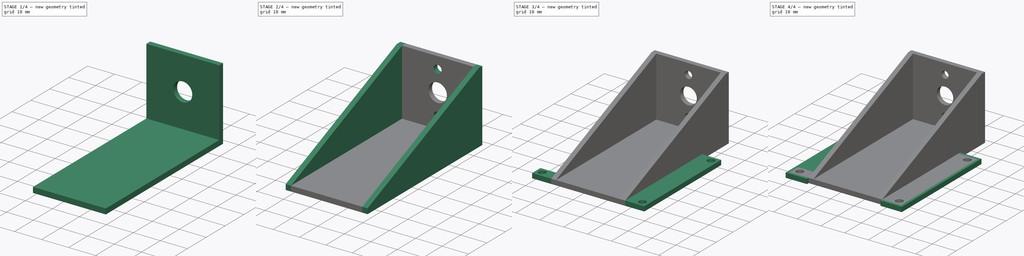
[diagram: build sequence overview — one tinted view per stage of 4, left to right]
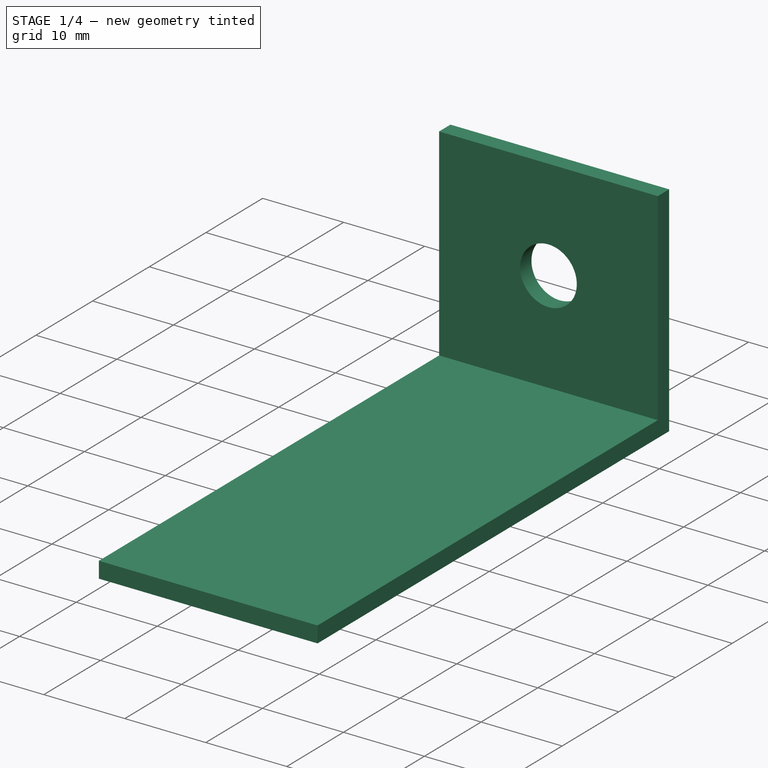
[diagram: stage 1 of 4 — iso view after this stage's code; geometry added in this stage tinted green]
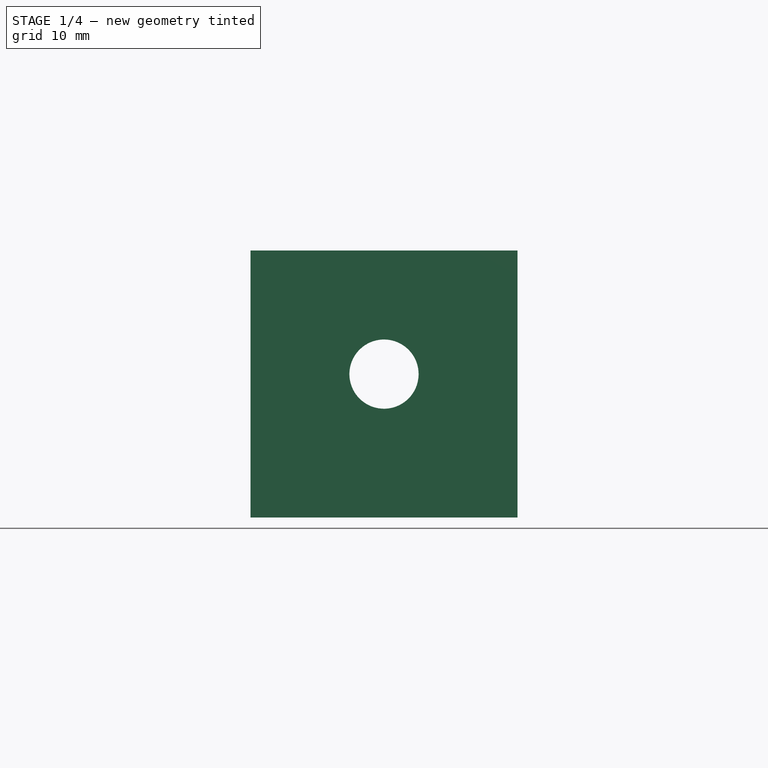
[diagram: stage 1 of 4 — front view after this stage's code; geometry added in this stage tinted green]
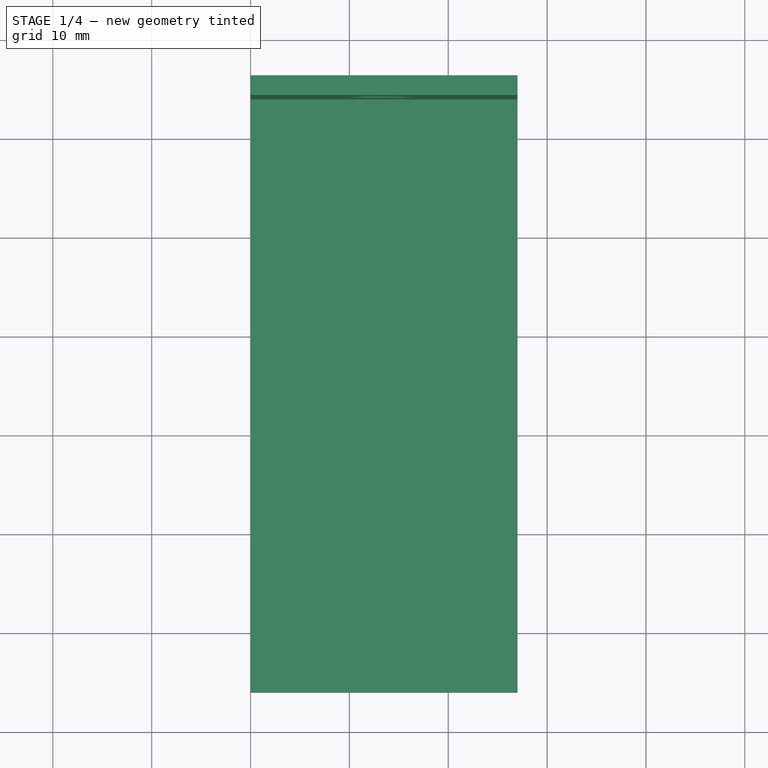
[diagram: stage 1 of 4 — top view after this stage's code; geometry added in this stage tinted green]
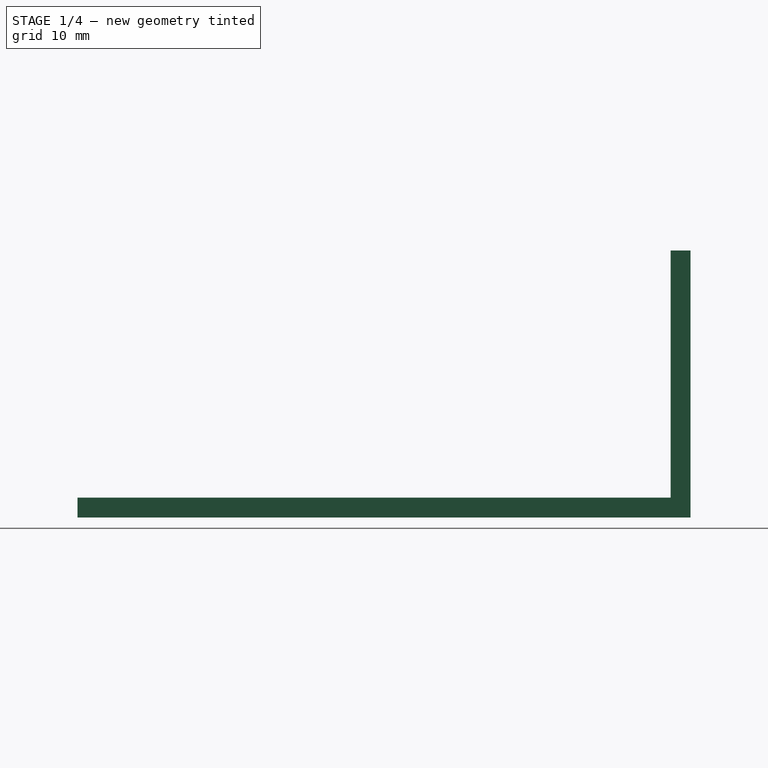
[diagram: stage 1 of 4 — right view after this stage's code; geometry added in this stage tinted green]
FCSTD DOCUMENT  (FreeCAD 0.15R4671 (Git))
Label: Motor-holder1
License: All rights reserved
LicenseURL: http://en.wikipedia.org/wiki/All_rights_reserved
objects: Sketcher::SketchObject×9, PartDesign::Pad×6, PartDesign::Pocket×3, PartDesign::LinearPattern×1
note: 28 computed .brp shape members not serialized (recipe doc carries the construction recipe); baked Part::Feature solids carry a one-line shape summary decoded from their .brp

FEATURE [Sketcher::SketchObject] Sketch
  Placement = pos=(0,0,0) rot=(0.57735,0.57735,0.57735;2.0944rad)
  sketch-geometry (7):
    g0: LineSegment StartX=-6 StartY=-4 StartZ=0 EndX=54 EndY=-4 EndZ=0
    g1: LineSegment StartX=54 StartY=-6 StartZ=0 EndX=-6 EndY=-6 EndZ=0
    g2: LineSegment StartX=-6 StartY=-6 StartZ=0 EndX=-6 EndY=-4 EndZ=0
    g3: LineSegment StartX=54 StartY=-6 StartZ=0 EndX=56 EndY=-6 EndZ=0
    g4: LineSegment StartX=56 StartY=-6 StartZ=0 EndX=56 EndY=21 EndZ=0
    g5: LineSegment StartX=56 StartY=21 StartZ=0 EndX=54 EndY=21 EndZ=0
    g6: LineSegment StartX=54 StartY=-4 StartZ=0 EndX=54 EndY=21 EndZ=0
  constraints (21):
    c: Coincident(g1,g2)
    c: Coincident(g2,g0)
    c: Horizontal(g0)
    c: Horizontal(g1)
    c: Vertical(g2)
    c: DistanceX(g0,g0) = 60
    c: DistanceY(g1,g0) = 2
    c: Coincident(g3,g4)
    c: Coincident(g4,g5)
    c: Horizontal(g3)
    c: Horizontal(g5)
    c: Vertical(g4)
    c: DistanceX(g3,g1) = -2
    c: DistanceY(g4,g3) = -27
    c: Coincident(g5,g6)
    c: Coincident(g0,g6)
    c: Coincident(g3,g1)
    c: DistanceX(g1,g1) = -60
    c: DistanceX(g4,g5) = -2
    c: DistanceX(g-1,g0) = -6
    c: DistanceY(g-1,g0) = -4
FEATURE [PartDesign::Pad] Pad
  Length = 27
  Length2 = 100
  Placement = pos=(0,0,0) rot=(0.57735,0.57735,0.57735;2.0944rad)
  Sketch = -> Sketch
  Type = 0
FEATURE [Sketcher::SketchObject] Sketch001
  Placement = pos=(0,54,0) rot=(0.57735,0.57735,-0.57735;2.0944rad)
  Support = -> Pad [Face4]
  sketch-geometry (2):
    g0: Circle CenterX=-8.5 CenterY=13.5 CenterZ=0 NormalX=0 NormalY=0 NormalZ=1 Radius=3.5
    g1: GeomPoint [constr] X=-5 Y=13.5 Z=0
  constraints (5):
    c: PointOnObject(g1,g0)
    c: DistanceY(g1,g0) = 0
    c: DistanceY(g-1,g0) = 13.5
    c: DistanceX(g-1,g0) = -8.5
    c: DistanceX(g0,g1) = 3.5
FEATURE [PartDesign::Pocket] Pocket
  Length = 5
  Placement = pos=(0,0,0) rot=(0.57735,0.57735,0.57735;2.0944rad)
  Sketch = -> Sketch001
  Type = 0
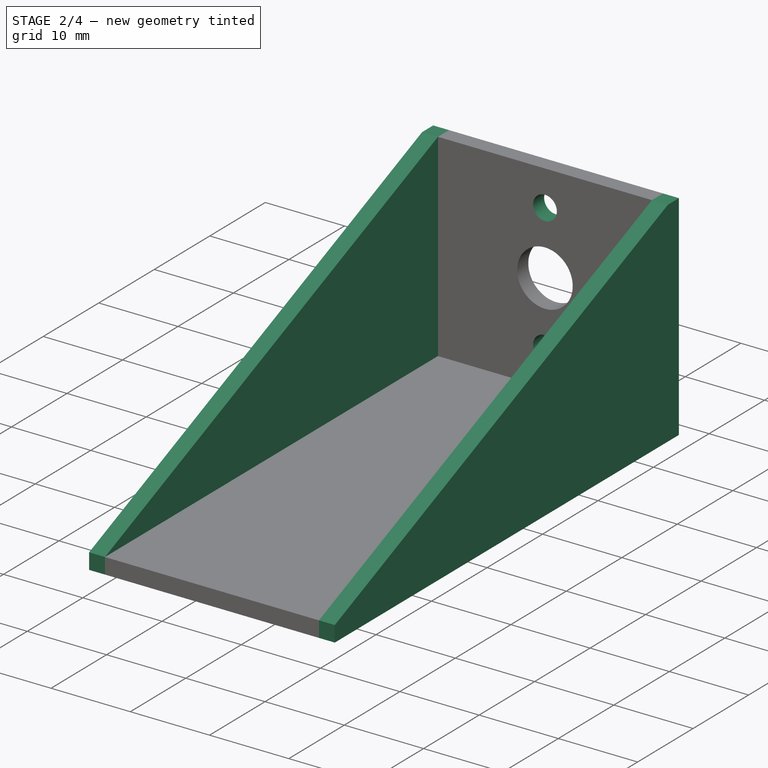
[diagram: stage 2 of 4 — iso view after this stage's code; geometry added in this stage tinted green]
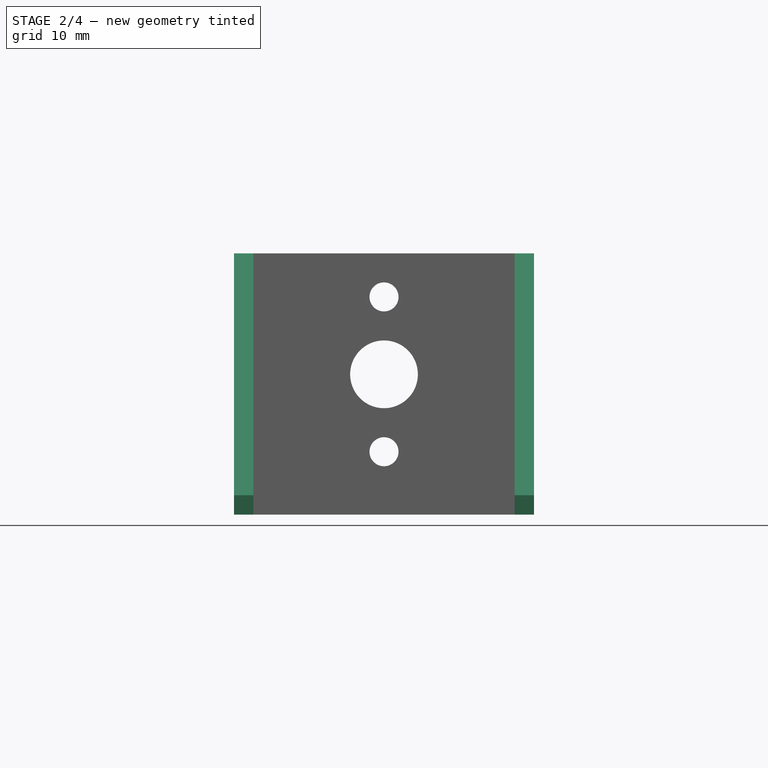
[diagram: stage 2 of 4 — front view after this stage's code; geometry added in this stage tinted green]
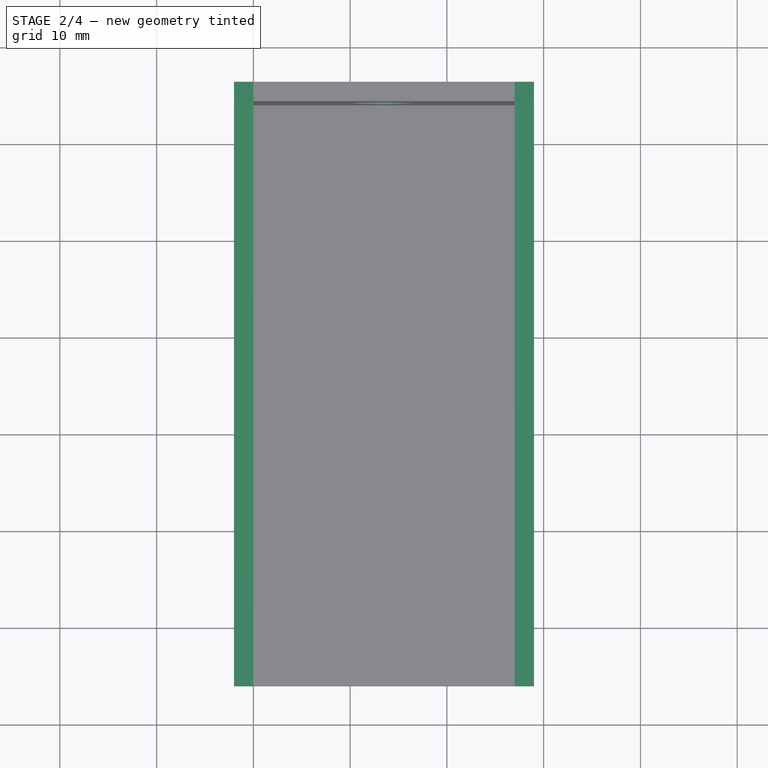
[diagram: stage 2 of 4 — top view after this stage's code; geometry added in this stage tinted green]
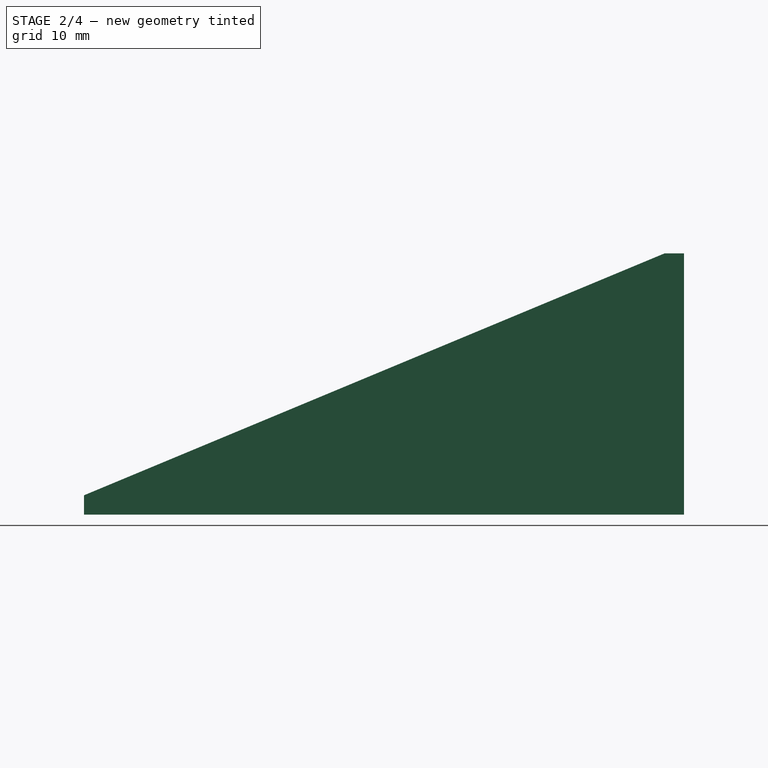
[diagram: stage 2 of 4 — right view after this stage's code; geometry added in this stage tinted green]
FEATURE [Sketcher::SketchObject] Sketch010
  Placement = pos=(0,56,0) rot=(0.57735,0.57735,0.57735;4.18879rad)
  Support = -> Pocket [Face6]
  sketch-geometry (4):
    g0: Circle CenterX=16.5 CenterY=13.5 CenterZ=0 NormalX=0 NormalY=0 NormalZ=1 Radius=1.5
    g1: GeomPoint [constr] X=18 Y=13.5 Z=0
    g2: Circle CenterX=0.5 CenterY=13.5 CenterZ=0 NormalX=0 NormalY=0 NormalZ=1 Radius=1.5
    g3: GeomPoint [constr] X=2 Y=13.5 Z=0
  constraints (10):
    c: PointOnObject(g1,g0)
    c: DistanceX(g1,g0) = -1.5
    c: DistanceY(g1,g0) = 0
    c: DistanceY(g-1,g0) = 13.5
    c: DistanceX(g-1,g0) = 16.5
    c: PointOnObject(g3,g2)
    c: DistanceX(g3,g2) = -1.5
    c: DistanceY(g2,g3) = 0
    c: DistanceX(g-1,g2) = 0.5
    c: DistanceY(g-1,g2) = 13.5
FEATURE [PartDesign::Pocket] Pocket005
  Length = 5
  Placement = pos=(0,0,0) rot=(0.57735,0.57735,0.57735;2.0944rad)
  Sketch = -> Sketch010
  Type = 0
FEATURE [Sketcher::SketchObject] Sketch012
  ExternalGeometry = -> [Pocket005]
  Placement = pos=(27,0,0) rot=(0.57735,0.57735,0.57735;2.0944rad)
  Support = -> Pocket005 [Face5]
  sketch-geometry (5):
    g0: LineSegment StartX=54 StartY=21 StartZ=0 EndX=56 EndY=21 EndZ=0
    g1: LineSegment StartX=54 StartY=21 StartZ=0 EndX=-6 EndY=-4 EndZ=0
    g2: LineSegment StartX=-6 StartY=-4 StartZ=0 EndX=-6 EndY=-6 EndZ=0
    g3: LineSegment StartX=-6 StartY=-6 StartZ=0 EndX=56 EndY=-6 EndZ=0
    g4: LineSegment StartX=56 StartY=21 StartZ=0 EndX=56 EndY=-6 EndZ=0
  constraints (10):
    c: Coincident(g0,g-6)
    c: Coincident(g0,g-7)
    c: Coincident(g1,g0)
    c: Coincident(g1,g-3)
    c: Coincident(g2,g-4)
    c: Coincident(g2,g1)
    c: Coincident(g3,g-5)
    c: Coincident(g3,g2)
    c: Coincident(g3,g4)
    c: Coincident(g4,g0)
FEATURE [PartDesign::Pad] Pad001
  Length = 2
  Length2 = 100
  Placement = pos=(0,0,0) rot=(0.57735,0.57735,0.57735;2.0944rad)
  Sketch = -> Sketch012
  Type = 0
FEATURE [PartDesign::LinearPattern] LinearPattern
  Direction = -> Pad001 [Face1]
  Length = 29
  Occurrences = 2
  Originals = -> [Pad001]
  Placement = pos=(0,0,0) rot=(0.57735,0.57735,0.57735;2.0944rad)
  Reversed = true
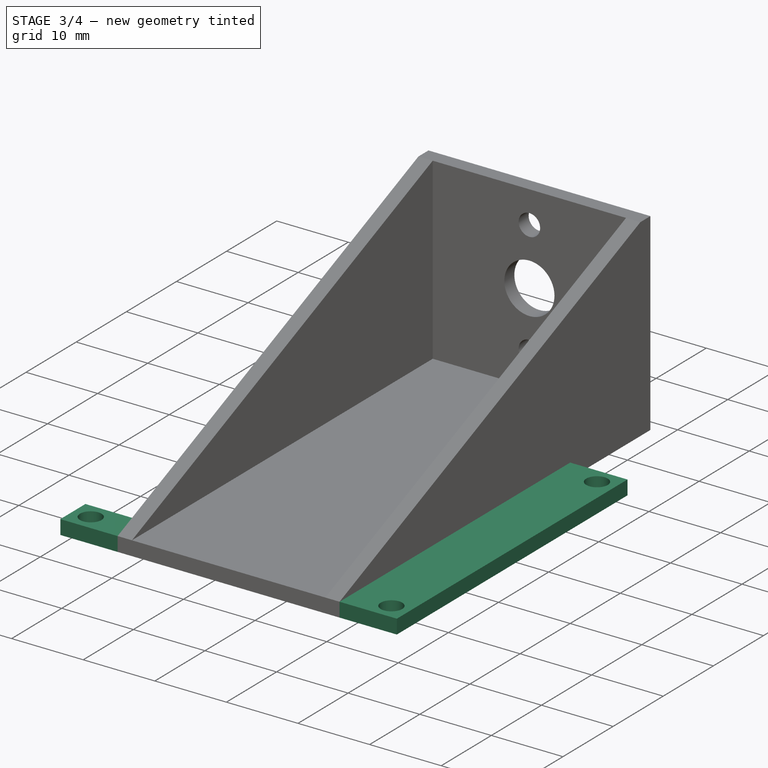
[diagram: stage 3 of 4 — iso view after this stage's code; geometry added in this stage tinted green]
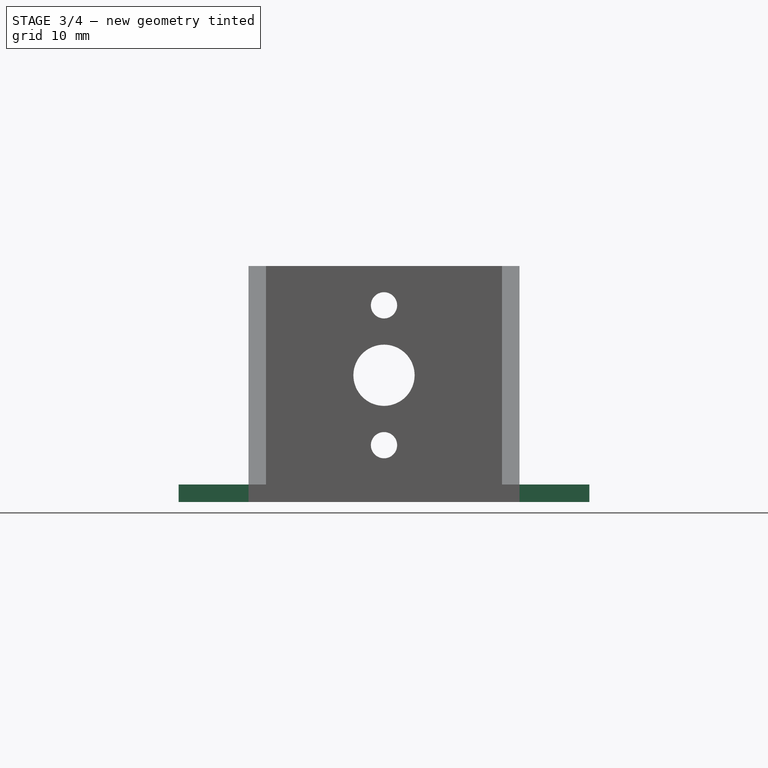
[diagram: stage 3 of 4 — front view after this stage's code; geometry added in this stage tinted green]
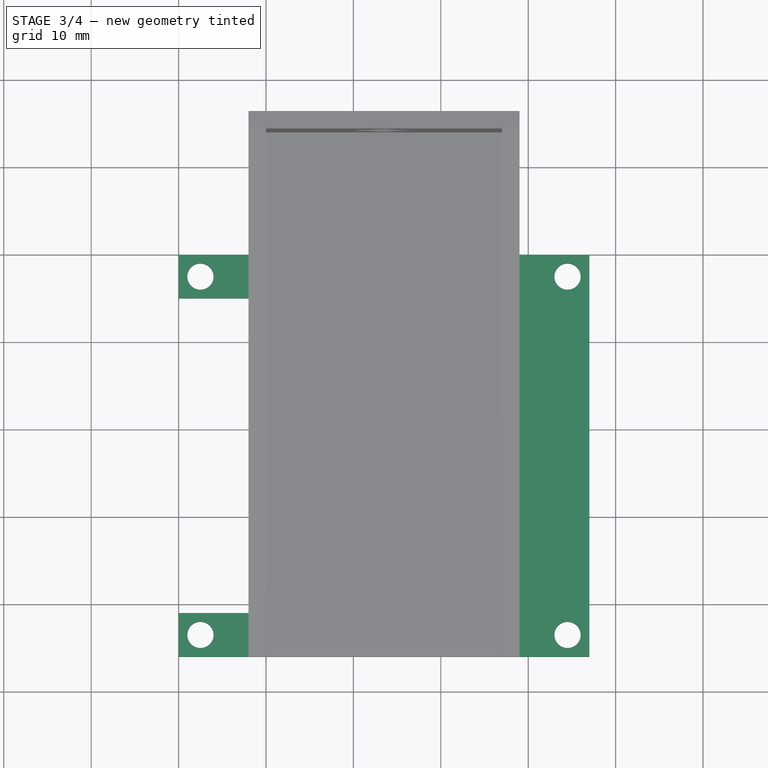
[diagram: stage 3 of 4 — top view after this stage's code; geometry added in this stage tinted green]
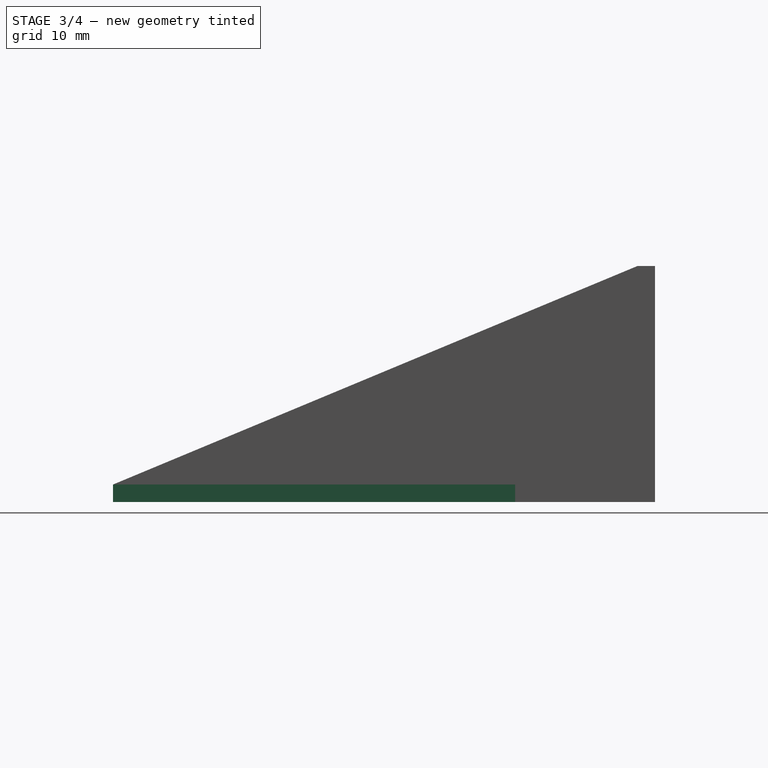
[diagram: stage 3 of 4 — right view after this stage's code; geometry added in this stage tinted green]
FEATURE [Sketcher::SketchObject] Sketch013
  ExternalGeometry = -> [LinearPattern]
  Placement = pos=(0,0,-4) rot=(0,0,-1;1.5708rad)
  Support = -> LinearPattern [Face3]
  sketch-geometry (16):
    g0: LineSegment StartX=1 StartY=27 StartZ=0 EndX=1 EndY=37 EndZ=0
    g1: LineSegment StartX=1 StartY=37 StartZ=0 EndX=6 EndY=37 EndZ=0
    g2: LineSegment StartX=1 StartY=0 StartZ=0 EndX=1 EndY=-10 EndZ=0
    g3: LineSegment StartX=1 StartY=-10 StartZ=0 EndX=6 EndY=-10 EndZ=0
    g4: LineSegment StartX=-40 StartY=0 StartZ=0 EndX=-35 EndY=0 EndZ=0
    g5: LineSegment StartX=-35 StartY=0 StartZ=0 EndX=-35 EndY=-10 EndZ=0
    g6: LineSegment StartX=-35 StartY=-10 StartZ=0 EndX=-40 EndY=-10 EndZ=0
    g7: LineSegment StartX=-40 StartY=-10 StartZ=0 EndX=-40 EndY=0 EndZ=0
    g8: LineSegment StartX=-40 StartY=27 StartZ=0 EndX=-35 EndY=27 EndZ=0
    g9: LineSegment StartX=-35 StartY=27 StartZ=0 EndX=-35 EndY=37 EndZ=0
    g10: LineSegment StartX=-35 StartY=37 StartZ=0 EndX=-40 EndY=37 EndZ=0
    g11: LineSegment StartX=-40 StartY=37 StartZ=0 EndX=-40 EndY=27 EndZ=0
    g12: LineSegment StartX=6 StartY=37 StartZ=0 EndX=6 EndY=27 EndZ=0
    g13: LineSegment StartX=1 StartY=27 StartZ=0 EndX=6 EndY=27 EndZ=0
    g14: LineSegment StartX=6 StartY=-10 StartZ=0 EndX=6 EndY=0 EndZ=0
    g15: LineSegment StartX=1 StartY=0 StartZ=0 EndX=6 EndY=0 EndZ=0
  constraints (48):
    c: Coincident(g0,g1)
    c: Horizontal(g1)
    c: Vertical(g0)
    c: DistanceX(g1,g0) = -5
    c: Coincident(g2,g3)
    c: Horizontal(g3)
    c: Vertical(g2)
    c: DistanceX(g2,g3) = 5
    c: DistanceY(g3,g-4) = 8
    c: Coincident(g4,g5)
    c: Coincident(g5,g6)
    c: Coincident(g6,g7)
    c: Coincident(g7,g4)
    c: Horizontal(g4)
    c: Horizontal(g6)
    c: Vertical(g5)
    c: Vertical(g7)
    c: DistanceY(g5,g4) = 10
    c: DistanceX(g5,g6) = -5
    c: DistanceX(g5,g2) = 36
    c: DistanceY(g2,g4) = 0
    c: Coincident(g8,g9)
    c: Coincident(g9,g10)
    c: Coincident(g10,g11)
    c: Coincident(g11,g8)
    c: Horizontal(g8)
    c: Horizontal(g10)
    c: Vertical(g9)
    c: Vertical(g11)
    c: DistanceY(g8,g0) = 0
    c: DistanceY(g8,g9) = 10
    c: DistanceX(g9,g10) = -5
    c: DistanceX(g9,g0) = 36
    c: Coincident(g13,g12)
    c: Coincident(g13,g0)
    c: DistanceX(g0,g12) = 5
    c: DistanceX(g-1,g0) = 1
    c: Coincident(g15,g14)
    c: Coincident(g15,g2)
    c: DistanceX(g14,g2) = -5
    c: DistanceY(g-1,g14) = 0
    c: DistanceX(g-1,g2) = 1
    c: DistanceY(g-1,g2) = 0
    c: Coincident(g3,g14)
    c: DistanceY(g-1,g12) = 27
    c: Coincident(g1,g12)
    c: DistanceY(g1,g12) = -10
    c: DistanceY(g-1,g0) = 27
FEATURE [PartDesign::Pad] Pad002
  Length = 2
  Length2 = 100
  Placement = pos=(0,0,0) rot=(0.57735,0.57735,0.57735;2.0944rad)
  Reversed = true
  Sketch = -> Sketch013
  Type = 0
FEATURE [Sketcher::SketchObject] Sketch014
  Placement = pos=(0,0,-4) rot=(0,0,-1;1.5708rad)
  Support = -> Pad002 [Face38]
  sketch-geometry (8):
    g0: Circle CenterX=3.5 CenterY=34.5 CenterZ=0 NormalX=0 NormalY=0 NormalZ=1 Radius=1.5
    g1: GeomPoint [constr] X=5 Y=34.5 Z=0
    g2: Circle CenterX=-37.5 CenterY=34.5 CenterZ=0 NormalX=0 NormalY=0 NormalZ=1 Radius=1.5
    g3: GeomPoint [constr] X=-36 Y=34.5 Z=0
    g4: Circle CenterX=-37.5 CenterY=-7.5 CenterZ=0 NormalX=0 NormalY=0 NormalZ=1 Radius=1.5
    g5: GeomPoint [constr] X=-36 Y=-7.5 Z=0
    g6: Circle CenterX=3.5 CenterY=-7.5 CenterZ=0 NormalX=0 NormalY=0 NormalZ=1 Radius=1.5
    g7: GeomPoint [constr] X=5 Y=-7.5 Z=0
  constraints (20):
    c: PointOnObject(g1,g0)
    c: DistanceX(g0,g1) = 1.5
    c: DistanceY(g0,g1) = 0
    c: DistanceX(g-1,g0) = 3.5
    c: DistanceY(g-1,g0) = 34.5
    c: DistanceX(g-1,g2) = -37.5
    c: DistanceY(g-1,g2) = 34.5
    c: PointOnObject(g3,g2)
    c: DistanceX(g3,g2) = -1.5
    c: DistanceY(g3,g2) = 0
    c: DistanceY(g-1,g4) = -7.5
    c: PointOnObject(g5,g4)
    c: DistanceX(g5,g4) = -1.5
    c: DistanceY(g5,g4) = 0
    c: DistanceX(g-1,g4) = -37.5
    c: PointOnObject(g7,g6)
    c: DistanceX(g7,g6) = -1.5
    c: DistanceY(g7,g6) = 0
    c: DistanceY(g-1,g6) = -7.5
    c: DistanceX(g-1,g6) = 3.5
FEATURE [PartDesign::Pocket] Pocket006
  Length = 5
  Placement = pos=(0,0,0) rot=(0.57735,0.57735,0.57735;2.0944rad)
  Sketch = -> Sketch014
  Type = 0
FEATURE [Sketcher::SketchObject] Sketch015
  ExternalGeometry = -> [Pocket006]
  Placement = pos=(0,0,-4) rot=(0,0,-1;1.5708rad)
  Support = -> Pocket006 [Face38]
  sketch-geometry (4):
    g0: LineSegment StartX=-35 StartY=37 StartZ=0 EndX=1 EndY=37 EndZ=0
    g1: LineSegment StartX=1 StartY=37 StartZ=0 EndX=1 EndY=29 EndZ=0
    g2: LineSegment StartX=1 StartY=29 StartZ=0 EndX=-35 EndY=29 EndZ=0
    g3: LineSegment StartX=-35 StartY=29 StartZ=0 EndX=-35 EndY=37 EndZ=0
  constraints (11):
    c: Coincident(g0,g1)
    c: Coincident(g1,g2)
    c: Coincident(g2,g3)
    c: Coincident(g3,g0)
    c: Horizontal(g0)
    c: Horizontal(g2)
    c: Vertical(g1)
    c: Vertical(g3)
    c: Coincident(g0,g-4)
    c: Coincident(g-3,g0)
    c: DistanceY(g1,g0) = 8
FEATURE [PartDesign::Pad] Pad003
  Length = 2
  Length2 = 100
  Placement = pos=(0,0,0) rot=(0.57735,0.57735,0.57735;2.0944rad)
  Reversed = true
  Sketch = -> Sketch015
  Type = 0
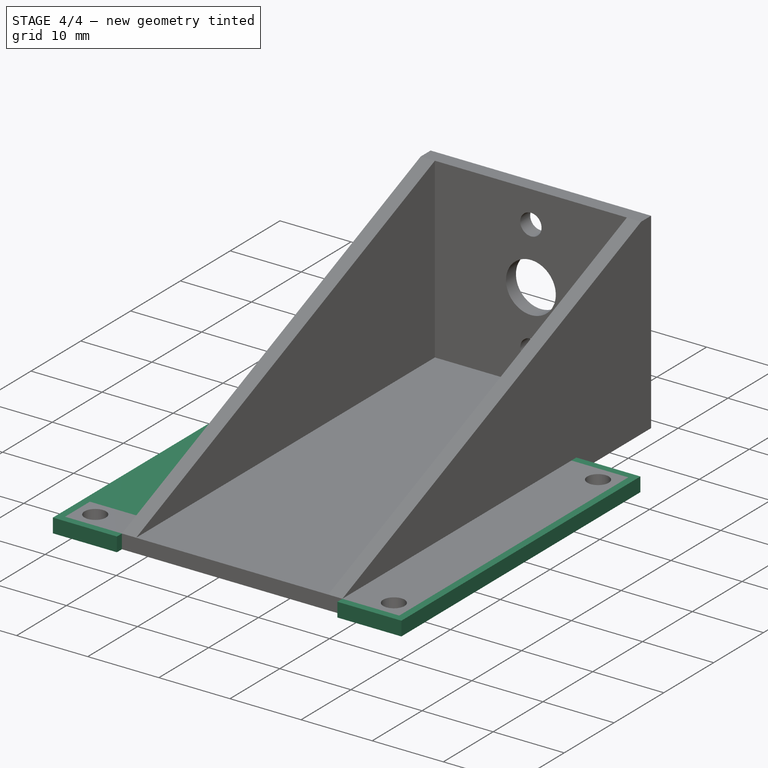
[diagram: stage 4 of 4 — iso view after this stage's code; geometry added in this stage tinted green]
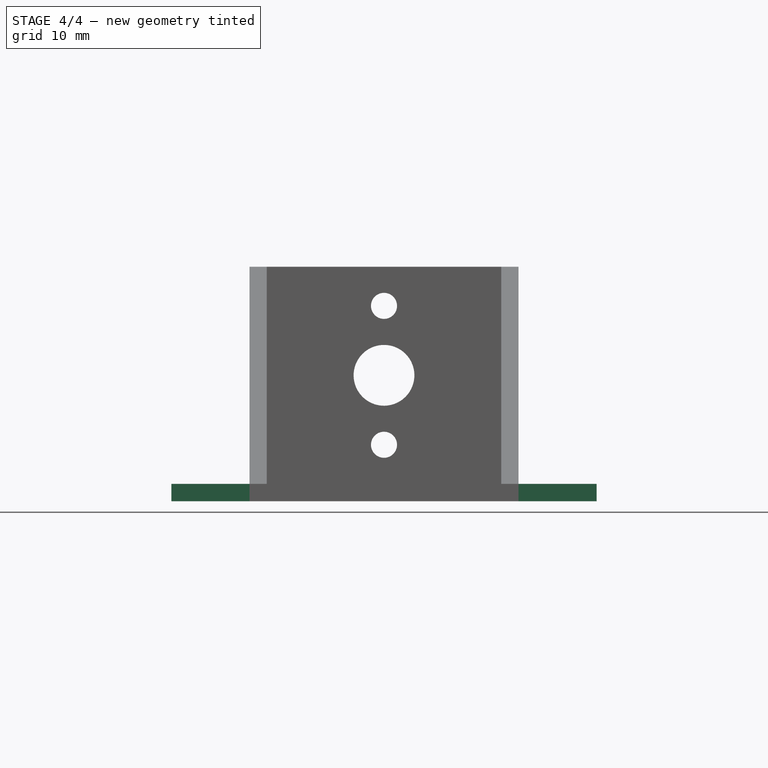
[diagram: stage 4 of 4 — front view after this stage's code; geometry added in this stage tinted green]
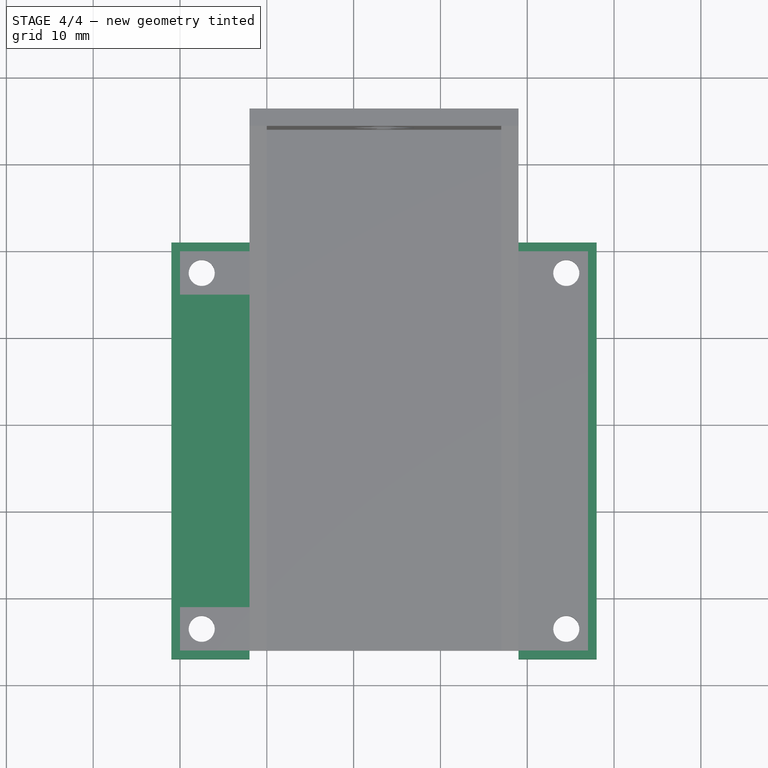
[diagram: stage 4 of 4 — top view after this stage's code; geometry added in this stage tinted green]
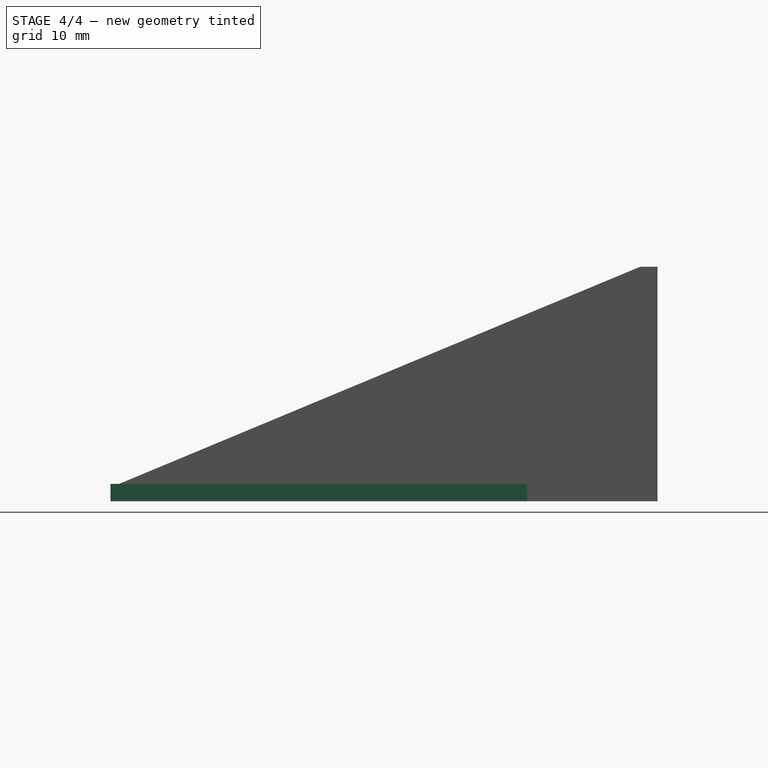
[diagram: stage 4 of 4 — right view after this stage's code; geometry added in this stage tinted green]
FEATURE [Sketcher::SketchObject] Sketch016
  ExternalGeometry = -> [Pad003]
  Placement = pos=(0,0,-4) rot=(0,0,-1;1.5708rad)
  Support = -> Pad003 [Face33]
  sketch-geometry (4):
    g0: LineSegment StartX=1 StartY=-10 StartZ=0 EndX=-35 EndY=-10 EndZ=0
    g1: LineSegment StartX=-35 StartY=-10 StartZ=0 EndX=-35 EndY=-2 EndZ=0
    g2: LineSegment StartX=-35 StartY=-2 StartZ=0 EndX=1 EndY=-2 EndZ=0
    g3: LineSegment StartX=1 StartY=-2 StartZ=0 EndX=1 EndY=-10 EndZ=0
  constraints (11):
    c: Coincident(g0,g1)
    c: Coincident(g1,g2)
    c: Coincident(g2,g3)
    c: Coincident(g3,g0)
    c: Horizontal(g0)
    c: Horizontal(g2)
    c: Vertical(g1)
    c: Vertical(g3)
    c: Coincident(g-4,g0)
    c: Coincident(g-3,g0)
    c: DistanceY(g0,g2) = 8
FEATURE [PartDesign::Pad] Pad004
  Length = 2
  Length2 = 100
  Placement = pos=(0,0,0) rot=(0.57735,0.57735,0.57735;2.0944rad)
  Reversed = true
  Sketch = -> Sketch016
  Type = 0
FEATURE [Sketcher::SketchObject] Sketch017
  ExternalGeometry = -> [Pad004]
  Placement = pos=(0,0,-4) rot=(0,0,-1;1.5708rad)
  Support = -> Pad004 [Face38]
  sketch-geometry (16):
    g0: LineSegment StartX=6 StartY=29 StartZ=0 EndX=7 EndY=29 EndZ=0
    g1: LineSegment StartX=7 StartY=29 StartZ=0 EndX=7 EndY=38 EndZ=0
    g2: LineSegment StartX=7 StartY=38 StartZ=0 EndX=-41 EndY=38 EndZ=0
    g3: LineSegment StartX=-40 StartY=29 StartZ=0 EndX=-41 EndY=29 EndZ=0
    g4: LineSegment StartX=-41 StartY=29 StartZ=0 EndX=-41 EndY=38 EndZ=0
    g5: LineSegment StartX=6 StartY=37 StartZ=0 EndX=6 EndY=29 EndZ=0
    g6: LineSegment StartX=6 StartY=37 StartZ=0 EndX=-40 EndY=37 EndZ=0
    g7: LineSegment StartX=-40 StartY=37 StartZ=0 EndX=-40 EndY=29 EndZ=0
    g8: LineSegment StartX=-41 StartY=-2 StartZ=0 EndX=-40 EndY=-2 EndZ=0
    g9: LineSegment StartX=-41 StartY=-11 StartZ=0 EndX=-41 EndY=-2 EndZ=0
    g10: LineSegment StartX=-40 StartY=-10 StartZ=0 EndX=6 EndY=-10 EndZ=0
    g11: LineSegment StartX=7 StartY=-11 StartZ=0 EndX=-41 EndY=-11 EndZ=0
    g12: LineSegment StartX=-40 StartY=-2 StartZ=0 EndX=-40 EndY=-10 EndZ=0
    g13: LineSegment StartX=6 StartY=-2 StartZ=0 EndX=7 EndY=-2 EndZ=0
    g14: LineSegment StartX=7 StartY=-2 StartZ=0 EndX=7 EndY=-11 EndZ=0
    g15: LineSegment StartX=6 StartY=-10 StartZ=0 EndX=6 EndY=-2 EndZ=0
  constraints (45):
    c: Coincident(g0,g1)
    c: Horizontal(g0)
    c: Vertical(g1)
    c: Horizontal(g2)
    c: Coincident(g3,g4)
    c: Horizontal(g3)
    c: Vertical(g4)
    c: Coincident(g1,g2)
    c: Coincident(g0,g5)
    c: Coincident(g-3,g5)
    c: Coincident(g6,g5)
    c: Coincident(g4,g2)
    c: Coincident(g7,g3)
    c: Coincident(g7,g-4)
    c: Coincident(g6,g7)
    c: DistanceX(g5,g1) = 1
    c: DistanceX(g0,g0) = 1
    c: DistanceY(g0,g1) = 9
    c: DistanceY(g0,g5) = 8
    c: DistanceX(g1,g2) = -48
    c: DistanceX(g3,g3) = 1
    c: DistanceY(g2,g3) = -9
    c: Coincident(g9,g8)
    c: Horizontal(g8)
    c: Vertical(g9)
    c: Horizontal(g10)
    c: Horizontal(g11)
    c: Coincident(g11,g9)
    c: Coincident(g12,g10)
    c: Coincident(g10,g-5)
    c: Coincident(g12,g8)
    c: Coincident(g13,g14)
    c: Coincident(g15,g13)
    c: Horizontal(g13)
    c: Vertical(g14)
    c: Vertical(g15)
    c: Coincident(g15,g-6)
    c: Coincident(g10,g15)
    c: Coincident(g11,g14)
    c: DistanceX(g13,g13) = 1
    c: DistanceY(g13,g11) = -9
    c: DistanceY(g10,g11) = -1
    c: DistanceX(g11,g9) = -48
    c: DistanceX(g8,g8) = -1
    c: DistanceY(g8,g9) = -9
FEATURE [PartDesign::Pad] Pad005
  Length = 2
  Length2 = 100
  Placement = pos=(0,0,0) rot=(0.57735,0.57735,0.57735;2.0944rad)
  Reversed = true
  Sketch = -> Sketch017
  Type = 0
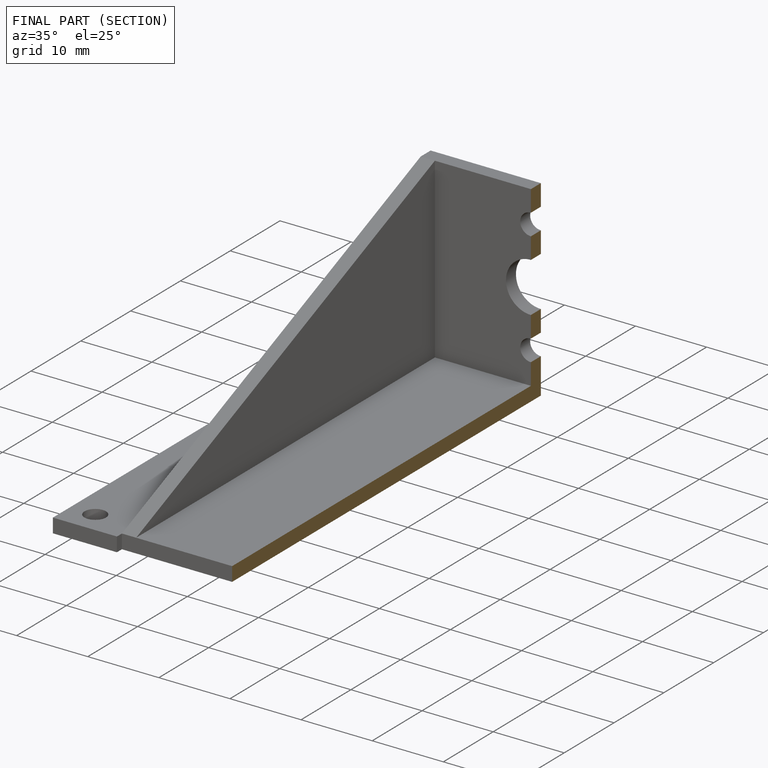
[diagram: finished part — half-section view (interior)]
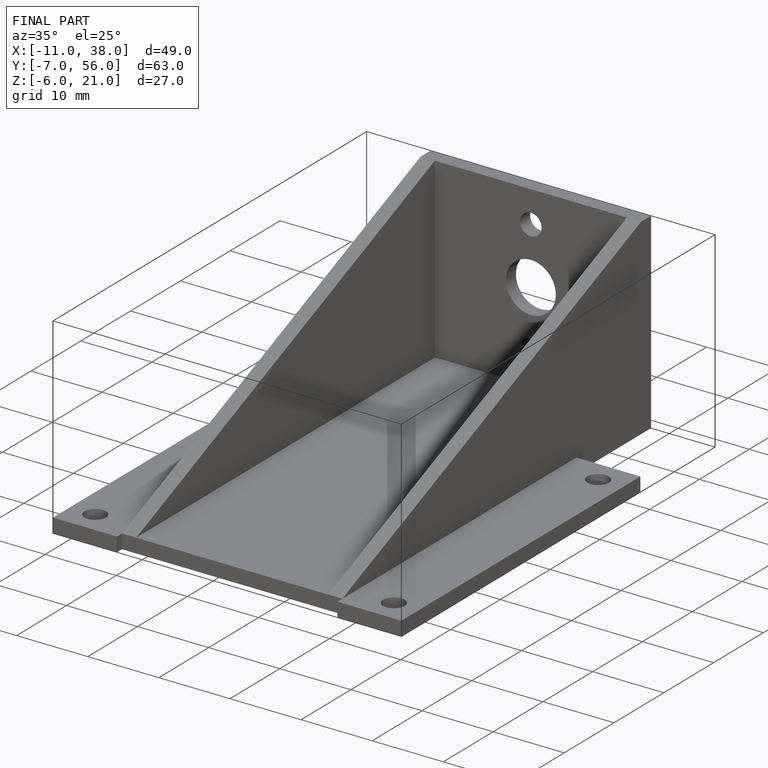
[diagram: finished part — iso view with bounding-box wireframe]
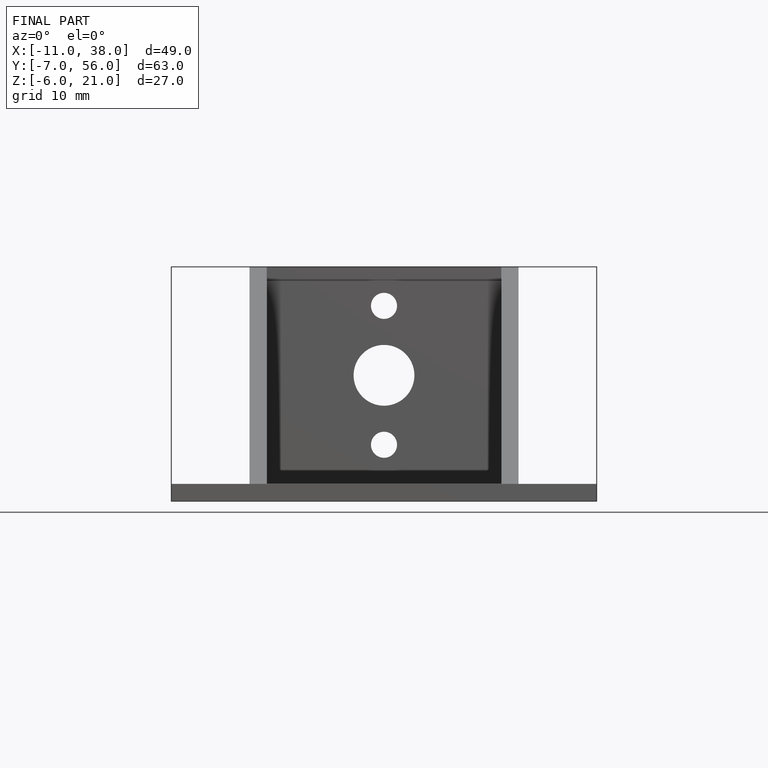
[diagram: finished part — front view with bounding-box wireframe]
